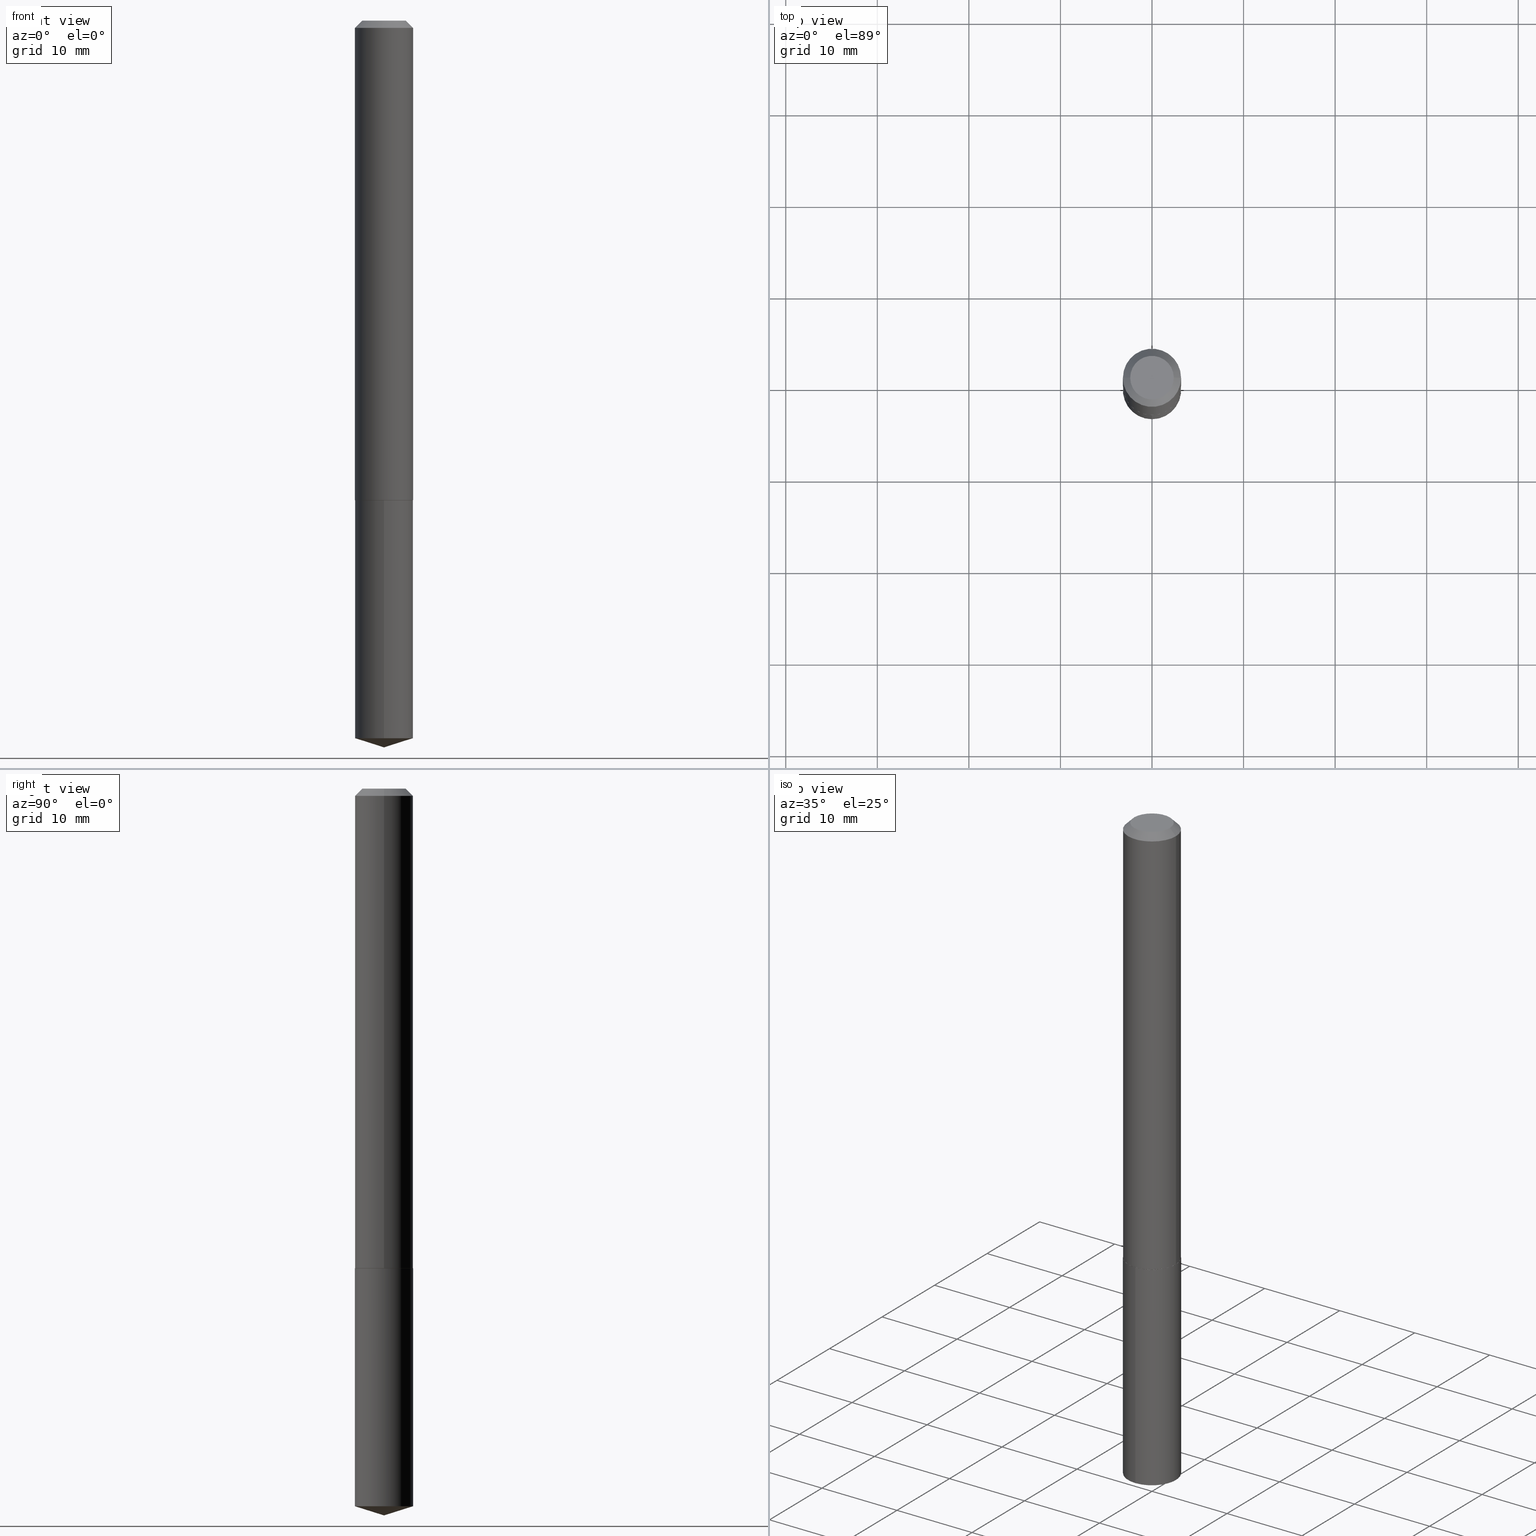
[diagram: canonical four-view strip — front | top / right | iso, engineering-drawing reading convention]
A machine part, canonical four-view strip (front | top / right | iso — engineering-drawing reading convention). The complete STEP part file that produces these views, byte-faithful:
ISO-10303-21;
HEADER;
FILE_DESCRIPTION (( 'STEP AP203' ),
    '1' );
FILE_NAME ('51343.STEP',
    '2024-04-22T18:43:46',
    ( '' ),
    ( '' ),
    'SwSTEP 2.0',
    'SolidWorks 2023',
    '' );
FILE_SCHEMA (( 'CONFIG_CONTROL_DESIGN' ));
ENDSEC;

DATA;
#1 = EDGE_CURVE ( 'NONE', #319, #227, #201, .T. ) ;
#2 = PLANE ( 'NONE',  #223 ) ;
#3 = VECTOR ( 'NONE', #103, 39.37007874015748143 ) ;
#4 = APPROVAL_PERSON_ORGANIZATION ( #281, #255, #321 ) ;
#5 = CARTESIAN_POINT ( 'NONE',  ( 5.043779412756844791E-29, -7.201180261363988578E-15, -2.062500000000000000 ) ) ;
#6 = CC_DESIGN_DATE_AND_TIME_ASSIGNMENT ( #9, #129, ( #85 ) ) ;
#7 = DIRECTION ( 'NONE',  ( -2.445468806185136597E-29, 3.491481338843145583E-15, 1.000000000000000000 ) ) ;
#8 = EDGE_CURVE ( 'NONE', #86, #29, #30, .T. ) ;
#9 = DATE_AND_TIME ( #374, #212 ) ;
#10 = CONICAL_SURFACE ( 'NONE', #253, 0.1250000000000002220, 0.7853981633976361287 ) ;
#11 = CC_DESIGN_PERSON_AND_ORGANIZATION_ASSIGNMENT ( #168, #43, ( #210 ) ) ;
#12 =( NAMED_UNIT ( * ) PLANE_ANGLE_UNIT ( ) SI_UNIT ( $, .RADIAN. ) );
#13 = EDGE_LOOP ( 'NONE', ( #232, #377, #147, #94 ) ) ;
#14 = APPROVAL_DATE_TIME ( #379, #255 ) ;
#15 = ADVANCED_FACE ( 'NONE', ( #259 ), #101, .F. ) ;
#16 = EDGE_LOOP ( 'NONE', ( #249, #242, #49 ) ) ;
#17 = FACE_OUTER_BOUND ( 'NONE', #215, .T. ) ;
#18 = DATE_AND_TIME ( #161, #167 ) ;
#19 = VECTOR ( 'NONE', #148, 39.37007874015748143 ) ;
#20 = DIRECTION ( 'NONE',  ( -2.445468806185136597E-29, 3.491481338843145583E-15, 1.000000000000000000 ) ) ;
#21 = DIRECTION ( 'NONE',  ( 1.000000000000000000, -6.982962677686266711E-15, 4.876176775795935232E-29 ) ) ;
#22 = DIMENSIONAL_EXPONENTS ( 1.000000000000000000, 0.000000000000000000, 0.000000000000000000, 0.000000000000000000, 0.000000000000000000, 0.000000000000000000, 0.000000000000000000 ) ;
#23 = ORIENTED_EDGE ( 'NONE', *, *, #389, .T. ) ;
#24 = DIRECTION ( 'NONE',  ( 6.776566513254247093E-15, 0.9537169507482274877, 0.3007057995042716203 ) ) ;
#25 = CIRCLE ( 'NONE', #246, 0.1250000000000000000 ) ;
#26 = CARTESIAN_POINT ( 'NONE',  ( 7.642090019328604414E-31, -1.091087918388490513E-16, -0.03125000000000021511 ) ) ;
#27 = CARTESIAN_POINT ( 'NONE',  ( -0.09374999999999998612, 7.092071469525108711E-16, -9.980871413055698252E-18 ) ) ;
#28 = ADVANCED_FACE ( 'NONE', ( #17 ), #10, .T. ) ;
#29 = VERTEX_POINT ( 'NONE', #266 ) ;
#30 = CIRCLE ( 'NONE', #290, 0.1250000000000000000 ) ;
#31 = CIRCLE ( 'NONE', #274, 0.1245000000000001383 ) ;
#32 = PRODUCT_DEFINITION_FORMATION_WITH_SPECIFIED_SOURCE ( 'ANY', '', #240, .NOT_KNOWN. ) ;
#33 = EDGE_LOOP ( 'NONE', ( #131, #205, #163 ) ) ;
#34 = LINE ( 'NONE', #154, #3 ) ;
#35 = ADVANCED_FACE ( 'NONE', ( #353 ), #338, .T. ) ;
#36 = EDGE_LOOP ( 'NONE', ( #75, #307, #109, #316 ) ) ;
#37 = DIRECTION ( 'NONE',  ( -2.445468806185136597E-29, 3.491481338843145583E-15, 1.000000000000000000 ) ) ;
#38 = LINE ( 'NONE', #218, #339 ) ;
#39 = MANIFOLD_SOLID_BREP ( 'Body-Move/Copy2[2]', #241 ) ;
#40 = EDGE_LOOP ( 'NONE', ( #77, #104, #187, #46 ) ) ;
#41 = LINE ( 'NONE', #367, #114 ) ;
#42 = FACE_OUTER_BOUND ( 'NONE', #80, .T. ) ;
#43 = PERSON_AND_ORGANIZATION_ROLE ( 'creator' ) ;
#44 = DIRECTION ( 'NONE',  ( -6.982962677686265922E-15, -1.000000000000000000, 4.370956789862821150E-15 ) ) ;
#45 = PERSON_AND_ORGANIZATION_ROLE ( 'design_supplier' ) ;
#46 = ORIENTED_EDGE ( 'NONE', *, *, #363, .F. ) ;
#47 = DIRECTION ( 'NONE',  ( -2.438088387897960049E-29, 3.491481338843145188E-15, 1.000000000000000000 ) ) ;
#48 = COORDINATED_UNIVERSAL_TIME_OFFSET ( 5, 0, .BEHIND. ) ;
#49 = ORIENTED_EDGE ( 'NONE', *, *, #146, .F. ) ;
#50 = FACE_OUTER_BOUND ( 'NONE', #352, .T. ) ;
#51 =( NAMED_UNIT ( * ) SI_UNIT ( $, .STERADIAN. ) SOLID_ANGLE_UNIT ( ) );
#52 = CC_DESIGN_APPROVAL ( #365, ( #85 ) ) ;
#53 = CARTESIAN_POINT ( 'NONE',  ( 5.043779412756844791E-29, -7.201180261363988578E-15, -2.062500000000000000 ) ) ;
#54 = ADVANCED_FACE ( 'NONE', ( #238 ), #58, .T. ) ;
#55 = DIRECTION ( 'NONE',  ( 1.000000000000000000, -6.982962677686265922E-15, 0.000000000000000000 ) ) ;
#56 = DIRECTION ( 'NONE',  ( -2.445468806185136597E-29, 3.491481338843145583E-15, 1.000000000000000000 ) ) ;
#57 = DIRECTION ( 'NONE',  ( -6.982962677686265922E-15, -1.000000000000000000, 4.370956789862821150E-15 ) ) ;
#58 = CYLINDRICAL_SURFACE ( 'NONE', #236, 0.1250000000000000000 ) ;
#59 = EDGE_CURVE ( 'NONE', #319, #299, #175, .T. ) ;
#60 = DESIGN_CONTEXT ( 'detailed design', #194, 'design' ) ;
#61 = AXIS2_PLACEMENT_3D ( 'NONE', #324, #56, #335 ) ;
#62 = CONICAL_SURFACE ( 'NONE', #263, 0.1250000000000000000, 0.7853981633974450594 ) ;
#63 = CC_DESIGN_APPROVAL ( #219, ( #32 ) ) ;
#64 = ORIENTED_EDGE ( 'NONE', *, *, #283, .F. ) ;
#65 = CARTESIAN_POINT ( 'NONE',  ( -0.1245000000000001383, -6.313905328168552254E-15, -2.062500000000000000 ) ) ;
#66 = CARTESIAN_POINT ( 'NONE',  ( -0.1250000000000000000, -2.766093236566581277E-15, -0.03125000000000021511 ) ) ;
#67 = CARTESIAN_POINT ( 'NONE',  ( 0.1250000000000000000, -9.819791265496324395E-16, -0.03125000000000021511 ) ) ;
#68 = CIRCLE ( 'NONE', #139, 0.09374999999999998612 ) ;
#69 = VERTEX_POINT ( 'NONE', #115 ) ;
#70 = ADVANCED_FACE ( 'NONE', ( #378 ), #62, .T. ) ;
#71 = CLOSED_SHELL ( 'NONE', ( #83, #35, #162, #54, #271 ) ) ;
#72 = FACE_OUTER_BOUND ( 'NONE', #261, .T. ) ;
#73 = LINE ( 'NONE', #92, #151 ) ;
#74 = AXIS2_PLACEMENT_3D ( 'NONE', #53, #87, #172 ) ;
#75 = ORIENTED_EDGE ( 'NONE', *, *, #146, .T. ) ;
#76 = PERSON_AND_ORGANIZATION_ROLE ( 'classification_officer' ) ;
#77 = ORIENTED_EDGE ( 'NONE', *, *, #283, .T. ) ;
#78 = CARTESIAN_POINT ( 'NONE',  ( 7.548781518313018296E-29, -1.076887075257701852E-14, -3.085587651390127029 ) ) ;
#79 = CARTESIAN_POINT ( 'NONE',  ( 0.000000000000000000, 0.000000000000000000, 0.000000000000000000 ) ) ;
#80 = EDGE_LOOP ( 'NONE', ( #160, #158, #120, #366 ) ) ;
#81 = CARTESIAN_POINT ( 'NONE',  ( 2.440790969916101273E-46, -3.484802628406033486E-32, -9.980871413050928108E-18 ) ) ;
#82 = PERSON_AND_ORGANIZATION_ROLE ( 'creator' ) ;
#83 = ADVANCED_FACE ( 'NONE', ( #294 ), #265, .T. ) ;
#84 = AXIS2_PLACEMENT_3D ( 'NONE', #270, #250, #188 ) ;
#85 = SECURITY_CLASSIFICATION ( '', '', #287 ) ;
#86 = VERTEX_POINT ( 'NONE', #269 ) ;
#87 = DIRECTION ( 'NONE',  ( -2.448472623193610432E-29, 3.487179701920364384E-15, 1.000000000000000000 ) ) ;
#88 = DIRECTION ( 'NONE',  ( -2.445468806185136597E-29, 3.491481338843145583E-15, 1.000000000000000000 ) ) ;
#89 = DIRECTION ( 'NONE',  ( -6.982962677686265922E-15, -1.000000000000000000, 3.500519750498761230E-15 ) ) ;
#90 = VECTOR ( 'NONE', #24, 39.37007874015748854 ) ;
#91 = PRODUCT_RELATED_PRODUCT_CATEGORY ( 'detail', '', ( #240 ) ) ;
#92 = CARTESIAN_POINT ( 'NONE',  ( 0.1250000000000001110, -8.728703347107841277E-16, 6.095220969744924646E-30 ) ) ;
#93 = CIRCLE ( 'NONE', #84, 0.1250000000000000000 ) ;
#94 = ORIENTED_EDGE ( 'NONE', *, *, #370, .F. ) ;
#95 = DIRECTION ( 'NONE',  ( -6.982962677686265922E-15, -1.000000000000000000, 4.370956789862821150E-15 ) ) ;
#96 = DIRECTION ( 'NONE',  ( 1.000000000000000000, -6.982962677686266711E-15, 4.876176775795935232E-29 ) ) ;
#97 = CARTESIAN_POINT ( 'NONE',  ( 5.042556678353752550E-29, -7.199434520694567863E-15, -2.062000000000000277 ) ) ;
#98 = ADVANCED_FACE ( 'NONE', ( #323 ), #310, .T. ) ;
#99 = VERTEX_POINT ( 'NONE', #239 ) ;
#100 = CARTESIAN_POINT ( 'NONE',  ( -0.1250000000000002220, -6.311256100994441053E-15, -2.062000000000000277 ) ) ;
#101 = PLANE ( 'NONE',  #180 ) ;
#102 = CIRCLE ( 'NONE', #74, 0.1250000000000000000 ) ;
#103 = DIRECTION ( 'NONE',  ( -2.448472623193610432E-29, 3.487179701920364384E-15, 1.000000000000000000 ) ) ;
#104 = ORIENTED_EDGE ( 'NONE', *, *, #59, .T. ) ;
#105 = APPROVAL_STATUS ( 'not_yet_approved' ) ;
#106 = ORIENTED_EDGE ( 'NONE', *, *, #111, .T. ) ;
#107 = DIRECTION ( 'NONE',  ( -6.982962677686265922E-15, -1.000000000000000000, 4.370956789862821150E-15 ) ) ;
#108 = APPROVAL_DATE_TIME ( #18, #365 ) ;
#109 = ORIENTED_EDGE ( 'NONE', *, *, #173, .F. ) ;
#110 = CARTESIAN_POINT ( 'NONE',  ( -8.875127839335232056E-28, 1.263842307510292778E-13, 36.24507874015748143 ) ) ;
#111 = EDGE_CURVE ( 'NONE', #192, #144, #68, .T. ) ;
#112 = COORDINATED_UNIVERSAL_TIME_OFFSET ( 5, 0, .BEHIND. ) ;
#113 = CARTESIAN_POINT ( 'NONE',  ( 5.043779412756844791E-29, -7.201180261363988578E-15, -2.062500000000000000 ) ) ;
#114 = VECTOR ( 'NONE', #184, 39.37007874015748143 ) ;
#115 = CARTESIAN_POINT ( 'NONE',  ( 0.1250000000000002220, -8.072304855405352780E-15, -2.062000000000000277 ) ) ;
#116 = DIRECTION ( 'NONE',  ( -2.448472623193610432E-29, 3.487179701920364384E-15, 1.000000000000000000 ) ) ;
#117 = CONICAL_SURFACE ( 'NONE', #134, 0.1250000000000000000, 0.7853981633974450594 ) ;
#118 = EDGE_CURVE ( 'NONE', #69, #299, #268, .T. ) ;
#119 = CARTESIAN_POINT ( 'NONE',  ( 2.440790969916101273E-46, -3.484802628406033486E-32, -9.980871413050928108E-18 ) ) ;
#120 = ORIENTED_EDGE ( 'NONE', *, *, #326, .T. ) ;
#121 = CYLINDRICAL_SURFACE ( 'NONE', #358, 0.1250000000000001110 ) ;
#122 = AXIS2_PLACEMENT_3D ( 'NONE', #135, #116, #89 ) ;
#123 = DIRECTION ( 'NONE',  ( -6.659769872151621833E-15, -0.9537169507482252673, 0.3007057995042782816 ) ) ;
#124 = ORIENTED_EDGE ( 'NONE', *, *, #173, .T. ) ;
#125 = CARTESIAN_POINT ( 'NONE',  ( 7.642090019328604414E-31, -1.091087918388490513E-16, -0.03125000000000021511 ) ) ;
#126 = DIRECTION ( 'NONE',  ( -2.445468806185136597E-29, 3.491481338843145583E-15, 1.000000000000000000 ) ) ;
#127 = AXIS2_PLACEMENT_3D ( 'NONE', #5, #272, #95 ) ;
#128 = LOCAL_TIME ( 14, 43, 46.00000000000000000, #155 ) ;
#129 = DATE_TIME_ROLE ( 'classification_date' ) ;
#130 = APPROVAL_STATUS ( 'not_yet_approved' ) ;
#131 = ORIENTED_EDGE ( 'NONE', *, *, #207, .F. ) ;
#132 = PERSON_AND_ORGANIZATION ( #177, #376 ) ;
#133 = ORIENTED_EDGE ( 'NONE', *, *, #356, .F. ) ;
#134 = AXIS2_PLACEMENT_3D ( 'NONE', #125, #247, #331 ) ;
#135 = CARTESIAN_POINT ( 'NONE',  ( -8.875127839335232056E-28, 1.263842307510292778E-13, 36.24507874015748143 ) ) ;
#136 = APPROVAL_DATE_TIME ( #313, #219 ) ;
#137 = LINE ( 'NONE', #383, #90 ) ;
#138 = DIRECTION ( 'NONE',  ( -2.448472623193610432E-29, 3.487179701920364384E-15, 1.000000000000000000 ) ) ;
#139 = AXIS2_PLACEMENT_3D ( 'NONE', #81, #20, #387 ) ;
#140 = CIRCLE ( 'NONE', #385, 0.1250000000000000000 ) ;
#141 = APPROVAL_PERSON_ORGANIZATION ( #159, #219, #372 ) ;
#142 = DIRECTION ( 'NONE',  ( -2.448472623193610432E-29, 3.487179701920364384E-15, 1.000000000000000000 ) ) ;
#143 = DIRECTION ( 'NONE',  ( -2.448472623193610432E-29, 3.487179701920364384E-15, 1.000000000000000000 ) ) ;
#144 = VERTEX_POINT ( 'NONE', #27 ) ;
#145 =( GEOMETRIC_REPRESENTATION_CONTEXT ( 3 ) GLOBAL_UNCERTAINTY_ASSIGNED_CONTEXT ( ( #388 ) ) GLOBAL_UNIT_ASSIGNED_CONTEXT ( ( #157, #12, #51 ) ) REPRESENTATION_CONTEXT ( 'NONE', 'WORKASPACE' ) );
#146 = EDGE_CURVE ( 'NONE', #29, #86, #25, .T. ) ;
#147 = ORIENTED_EDGE ( 'NONE', *, *, #213, .T. ) ;
#148 = DIRECTION ( 'NONE',  ( 0.7071067811866803554, -2.468850131083648217E-15, 0.7071067811864146790 ) ) ;
#149 = EDGE_CURVE ( 'NONE', #192, #380, #197, .T. ) ;
#150 = CARTESIAN_POINT ( 'NONE',  ( 7.651476947480032109E-29, -1.089743656850113949E-14, -3.125000000000000000 ) ) ;
#151 = VECTOR ( 'NONE', #364, 39.37007874015748143 ) ;
#152 = CARTESIAN_POINT ( 'NONE',  ( 5.043779412756844791E-29, -7.201180261363988578E-15, -2.062500000000000000 ) ) ;
#153 = CC_DESIGN_PERSON_AND_ORGANIZATION_ASSIGNMENT ( #204, #45, ( #32 ) ) ;
#154 = CARTESIAN_POINT ( 'NONE',  ( -8.728703347107327531E-16, -0.1250000000000072164, -2.062499999999999556 ) ) ;
#155 = COORDINATED_UNIVERSAL_TIME_OFFSET ( 5, 0, .BEHIND. ) ;
#156 = VECTOR ( 'NONE', #351, 39.37007874015748143 ) ;
#157 =( CONVERSION_BASED_UNIT ( 'INCH', #349 ) LENGTH_UNIT ( ) NAMED_UNIT ( #22 ) );
#158 = ORIENTED_EDGE ( 'NONE', *, *, #149, .T. ) ;
#159 = PERSON_AND_ORGANIZATION ( #177, #376 ) ;
#160 = ORIENTED_EDGE ( 'NONE', *, *, #111, .F. ) ;
#161 = CALENDAR_DATE ( 2024, 22, 4 ) ;
#162 = ADVANCED_FACE ( 'NONE', ( #200 ), #297, .T. ) ;
#163 = ORIENTED_EDGE ( 'NONE', *, *, #8, .F. ) ;
#164 = CYLINDRICAL_SURFACE ( 'NONE', #279, 0.1250000000000001110 ) ;
#165 = MANIFOLD_SOLID_BREP ( 'Body-Move/Copy2[1]', #71 ) ;
#166 = VECTOR ( 'NONE', #308, 39.37007874015748143 ) ;
#167 = LOCAL_TIME ( 14, 43, 46.00000000000000000, #48 ) ;
#168 = PERSON_AND_ORGANIZATION ( #177, #376 ) ;
#169 = DIRECTION ( 'NONE',  ( -2.445468806185136597E-29, 3.491481338843145583E-15, 1.000000000000000000 ) ) ;
#170 = ORIENTED_EDGE ( 'NONE', *, *, #363, .T. ) ;
#171 = DIRECTION ( 'NONE',  ( 1.000000000000000000, -6.982962677686266711E-15, 0.000000000000000000 ) ) ;
#172 = DIRECTION ( 'NONE',  ( -6.982962677686265922E-15, -1.000000000000000000, 4.370956789862821150E-15 ) ) ;
#173 = EDGE_CURVE ( 'NONE', #99, #285, #102, .T. ) ;
#174 = AXIS2_PLACEMENT_3D ( 'NONE', #298, #88, #325 ) ;
#175 = LINE ( 'NONE', #384, #361 ) ;
#176 = APPLICATION_CONTEXT ( 'configuration controlled 3d designs of mechanical parts and assemblies' ) ;
#177 = PERSON ( 'UNSPECIFIED', 'UNSPECIFIED', 'UNSPECIFIED', ('UNSPECIFIED'), ('UNSPECIFIED'), ('UNSPECIFIED') ) ;
#178 = EDGE_CURVE ( 'NONE', #86, #285, #209, .T. ) ;
#179 = CC_DESIGN_SECURITY_CLASSIFICATION ( #85, ( #32 ) ) ;
#180 = AXIS2_PLACEMENT_3D ( 'NONE', #315, #47, #286 ) ;
#181 = FACE_OUTER_BOUND ( 'NONE', #314, .T. ) ;
#182 = EDGE_CURVE ( 'NONE', #217, #380, #140, .T. ) ;
#183 = ORIENTED_EDGE ( 'NONE', *, *, #292, .F. ) ;
#184 = DIRECTION ( 'NONE',  ( -2.445468806185136877E-29, 3.491481338843145188E-15, 1.000000000000000000 ) ) ;
#185 =( LENGTH_UNIT ( ) NAMED_UNIT ( * ) SI_UNIT ( $, .METRE. ) );
#186 = CIRCLE ( 'NONE', #311, 0.09374999999999998612 ) ;
#187 = ORIENTED_EDGE ( 'NONE', *, *, #118, .F. ) ;
#188 = DIRECTION ( 'NONE',  ( 1.000000000000000000, -6.982962677686266711E-15, 0.000000000000000000 ) ) ;
#189 = CC_DESIGN_PERSON_AND_ORGANIZATION_ASSIGNMENT ( #342, #226, ( #240 ) ) ;
#190 = DATE_TIME_ROLE ( 'creation_date' ) ;
#191 = CALENDAR_DATE ( 2024, 22, 4 ) ;
#192 = VERTEX_POINT ( 'NONE', #317 ) ;
#193 = ADVANCED_FACE ( 'NONE', ( #50 ), #164, .T. ) ;
#194 = APPLICATION_CONTEXT ( 'configuration controlled 3d designs of mechanical parts and assemblies' ) ;
#195 = ADVANCED_BREP_SHAPE_REPRESENTATION ( '51343', ( #165, #39, #368 ), #145 ) ;
#196 = ORIENTED_EDGE ( 'NONE', *, *, #149, .F. ) ;
#197 = LINE ( 'NONE', #320, #156 ) ;
#198 = CC_DESIGN_PERSON_AND_ORGANIZATION_ASSIGNMENT ( #284, #82, ( #32 ) ) ;
#199 = DIRECTION ( 'NONE',  ( 0.000000000000000000, 0.000000000000000000, 1.000000000000000000 ) ) ;
#200 = FACE_OUTER_BOUND ( 'NONE', #33, .T. ) ;
#201 = CIRCLE ( 'NONE', #61, 0.1245000000000001383 ) ;
#202 = AXIS2_PLACEMENT_3D ( 'NONE', #113, #288, #208 ) ;
#203 = APPROVAL_PERSON_ORGANIZATION ( #256, #365, #346 ) ;
#204 = PERSON_AND_ORGANIZATION ( #177, #376 ) ;
#205 = ORIENTED_EDGE ( 'NONE', *, *, #386, .T. ) ;
#206 = CARTESIAN_POINT ( 'NONE',  ( 7.642090019328604414E-31, -1.091087918388490513E-16, -0.03125000000000021511 ) ) ;
#207 = EDGE_CURVE ( 'NONE', #229, #86, #137, .T. ) ;
#208 = DIRECTION ( 'NONE',  ( -6.982962677686265922E-15, -1.000000000000000000, 4.370956789862821150E-15 ) ) ;
#209 = LINE ( 'NONE', #293, #328 ) ;
#210 = PRODUCT_DEFINITION ( 'UNKNOWN', '', #32, #60 ) ;
#211 = AXIS2_PLACEMENT_3D ( 'NONE', #357, #233, #55 ) ;
#212 = LOCAL_TIME ( 14, 43, 46.00000000000000000, #278 ) ;
#213 = EDGE_CURVE ( 'NONE', #29, #99, #34, .T. ) ;
#214 = ORIENTED_EDGE ( 'NONE', *, *, #334, .F. ) ;
#215 = EDGE_LOOP ( 'NONE', ( #347, #221, #170, #214 ) ) ;
#216 = DIRECTION ( 'NONE',  ( 2.438088387897960049E-29, -3.491481338843145188E-15, -1.000000000000000000 ) ) ;
#217 = VERTEX_POINT ( 'NONE', #66 ) ;
#218 = CARTESIAN_POINT ( 'NONE',  ( 7.639086202320077469E-29, -1.091518082080761119E-14, -3.125000000000000000 ) ) ;
#219 = APPROVAL ( #382, 'UNSPECIFIED' ) ;
#220 = CARTESIAN_POINT ( 'NONE',  ( -0.1250000000000000000, 7.637615428719342382E-16, -0.03125000000000021511 ) ) ;
#221 = ORIENTED_EDGE ( 'NONE', *, *, #1, .T. ) ;
#222 = LINE ( 'NONE', #275, #19 ) ;
#223 = AXIS2_PLACEMENT_3D ( 'NONE', #152, #340, #225 ) ;
#224 = DIRECTION ( 'NONE',  ( 1.000000000000000000, -6.982962677686265922E-15, 0.000000000000000000 ) ) ;
#225 = DIRECTION ( 'NONE',  ( 6.982962677686265922E-15, 1.000000000000000000, -3.487179701920364384E-15 ) ) ;
#226 = PERSON_AND_ORGANIZATION_ROLE ( 'design_owner' ) ;
#227 = VERTEX_POINT ( 'NONE', #360 ) ;
#228 = DATE_AND_TIME ( #291, #128 ) ;
#229 = VERTEX_POINT ( 'NONE', #150 ) ;
#230 = DIRECTION ( 'NONE',  ( -1.000000000000000000, 6.982962677686266711E-15, 0.000000000000000000 ) ) ;
#231 = SHAPE_DEFINITION_REPRESENTATION ( #243, #195 ) ;
#232 = ORIENTED_EDGE ( 'NONE', *, *, #178, .F. ) ;
#233 = DIRECTION ( 'NONE',  ( -2.445468806185136597E-29, 3.491481338843145583E-15, 1.000000000000000000 ) ) ;
#234 = ORIENTED_EDGE ( 'NONE', *, *, #182, .F. ) ;
#235 = DIRECTION ( 'NONE',  ( -6.982962677686265922E-15, -1.000000000000000000, 3.500519750498761230E-15 ) ) ;
#236 = AXIS2_PLACEMENT_3D ( 'NONE', #355, #138, #107 ) ;
#237 = ORIENTED_EDGE ( 'NONE', *, *, #118, .T. ) ;
#238 = FACE_OUTER_BOUND ( 'NONE', #13, .T. ) ;
#239 = CARTESIAN_POINT ( 'NONE',  ( -8.728703347107327531E-16, -0.1250000000000072164, -2.062499999999999556 ) ) ;
#240 = PRODUCT ( '51343', '51343', '', ( #264 ) ) ;
#241 = CLOSED_SHELL ( 'NONE', ( #312, #193, #98, #15, #28, #343, #70, #301 ) ) ;
#242 = ORIENTED_EDGE ( 'NONE', *, *, #207, .T. ) ;
#243 = PRODUCT_DEFINITION_SHAPE ( 'NONE', 'NONE',  #210 ) ;
#244 = DIRECTION ( 'NONE',  ( 1.000000000000000000, -6.982962677686266711E-15, 4.877000552086103125E-29 ) ) ;
#245 = ORIENTED_EDGE ( 'NONE', *, *, #292, .T. ) ;
#246 = AXIS2_PLACEMENT_3D ( 'NONE', #78, #143, #57 ) ;
#247 = DIRECTION ( 'NONE',  ( 2.445468806185136597E-29, -3.491481338843145583E-15, -1.000000000000000000 ) ) ;
#248 = LINE ( 'NONE', #220, #166 ) ;
#249 = ORIENTED_EDGE ( 'NONE', *, *, #386, .F. ) ;
#250 = DIRECTION ( 'NONE',  ( -2.445468806185136597E-29, 3.491481338843145583E-15, 1.000000000000000000 ) ) ;
#251 = EDGE_CURVE ( 'NONE', #299, #217, #41, .T. ) ;
#252 = DIRECTION ( 'NONE',  ( 1.000000000000000000, -6.982962677686265922E-15, 0.000000000000000000 ) ) ;
#253 = AXIS2_PLACEMENT_3D ( 'NONE', #97, #262, #224 ) ;
#254 = CIRCLE ( 'NONE', #306, 0.1250000000000002220 ) ;
#255 = APPROVAL ( #130, 'UNSPECIFIED' ) ;
#256 = PERSON_AND_ORGANIZATION ( #177, #376 ) ;
#257 = COORDINATED_UNIVERSAL_TIME_OFFSET ( 5, 0, .BEHIND. ) ;
#258 = EDGE_LOOP ( 'NONE', ( #196, #133, #23, #329 ) ) ;
#259 = FACE_OUTER_BOUND ( 'NONE', #302, .T. ) ;
#260 = DIRECTION ( 'NONE',  ( 1.000000000000000000, 0.000000000000000000, 0.000000000000000000 ) ) ;
#261 = EDGE_LOOP ( 'NONE', ( #124, #273 ) ) ;
#262 = DIRECTION ( 'NONE',  ( -2.445468806185136597E-29, 3.491481338843145583E-15, 1.000000000000000000 ) ) ;
#263 = AXIS2_PLACEMENT_3D ( 'NONE', #206, #348, #230 ) ;
#264 = MECHANICAL_CONTEXT ( 'NONE', #176, 'mechanical' ) ;
#265 = CYLINDRICAL_SURFACE ( 'NONE', #202, 0.1250000000000000000 ) ;
#266 = CARTESIAN_POINT ( 'NONE',  ( -8.728703347107075096E-16, -0.1250000000000107414, -3.085587651390126585 ) ) ;
#267 = DIRECTION ( 'NONE',  ( -0.7071067811866803554, 7.493145998870833788E-15, 0.7071067811864146790 ) ) ;
#268 = CIRCLE ( 'NONE', #211, 0.1250000000000002220 ) ;
#269 = CARTESIAN_POINT ( 'NONE',  ( 8.881784197002003713E-16, 0.1249999999999891753, -3.085587651390127473 ) ) ;
#270 = CARTESIAN_POINT ( 'NONE',  ( 7.642090019328604414E-31, -1.091087918388490513E-16, -0.03125000000000021511 ) ) ;
#271 = ADVANCED_FACE ( 'NONE', ( #72 ), #2, .F. ) ;
#272 = DIRECTION ( 'NONE',  ( -2.448472623193610432E-29, 3.487179701920364384E-15, 1.000000000000000000 ) ) ;
#273 = ORIENTED_EDGE ( 'NONE', *, *, #370, .T. ) ;
#274 = AXIS2_PLACEMENT_3D ( 'NONE', #369, #7, #252 ) ;
#275 = CARTESIAN_POINT ( 'NONE',  ( 0.1250000000000002220, -8.072304855405352780E-15, -2.062000000000000277 ) ) ;
#276 = CARTESIAN_POINT ( 'NONE',  ( 1.220395484958050637E-46, -1.742401314203016743E-32, -4.990435706525464054E-18 ) ) ;
#277 = PLANE ( 'NONE',  #375 ) ;
#278 = COORDINATED_UNIVERSAL_TIME_OFFSET ( 5, 0, .BEHIND. ) ;
#279 = AXIS2_PLACEMENT_3D ( 'NONE', #381, #169, #21 ) ;
#280 = CC_DESIGN_APPROVAL ( #255, ( #210 ) ) ;
#281 = PERSON_AND_ORGANIZATION ( #177, #376 ) ;
#282 = ORIENTED_EDGE ( 'NONE', *, *, #251, .F. ) ;
#283 = EDGE_CURVE ( 'NONE', #227, #319, #31, .T. ) ;
#284 = PERSON_AND_ORGANIZATION ( #177, #376 ) ;
#285 = VERTEX_POINT ( 'NONE', #341 ) ;
#286 = DIRECTION ( 'NONE',  ( 1.000000000000000000, -6.982962677686265922E-15, 4.876176775795935793E-29 ) ) ;
#287 = SECURITY_CLASSIFICATION_LEVEL ( 'unclassified' ) ;
#288 = DIRECTION ( 'NONE',  ( -2.448472623193610432E-29, 3.487179701920364384E-15, 1.000000000000000000 ) ) ;
#289 = CIRCLE ( 'NONE', #127, 0.1250000000000000000 ) ;
#290 = AXIS2_PLACEMENT_3D ( 'NONE', #359, #336, #44 ) ;
#291 = CALENDAR_DATE ( 2024, 22, 4 ) ;
#292 = EDGE_CURVE ( 'NONE', #69, #380, #73, .T. ) ;
#293 = CARTESIAN_POINT ( 'NONE',  ( 8.881784197001755222E-16, 0.1249999999999927974, -2.062500000000000888 ) ) ;
#294 = FACE_OUTER_BOUND ( 'NONE', #36, .T. ) ;
#295 = CC_DESIGN_PERSON_AND_ORGANIZATION_ASSIGNMENT ( #132, #76, ( #85 ) ) ;
#296 = DIRECTION ( 'NONE',  ( -2.448472623193610432E-29, 3.487179701920364384E-15, 1.000000000000000000 ) ) ;
#297 = CONICAL_SURFACE ( 'NONE', #122, 124.8659371009130439, 1.265363707695887019 ) ;
#298 = CARTESIAN_POINT ( 'NONE',  ( 5.042556678353752550E-29, -7.199434520694567863E-15, -2.062000000000000277 ) ) ;
#299 = VERTEX_POINT ( 'NONE', #100 ) ;
#300 = LOCAL_TIME ( 14, 43, 46.00000000000000000, #257 ) ;
#301 = ADVANCED_FACE ( 'NONE', ( #333 ), #277, .F. ) ;
#302 = EDGE_LOOP ( 'NONE', ( #64, #350 ) ) ;
#303 = CARTESIAN_POINT ( 'NONE',  ( 0.000000000000000000, 0.000000000000000000, 0.000000000000000000 ) ) ;
#304 = ORIENTED_EDGE ( 'NONE', *, *, #334, .T. ) ;
#305 = DIRECTION ( 'NONE',  ( -2.445468806185136597E-29, 3.491481338843145583E-15, 1.000000000000000000 ) ) ;
#306 = AXIS2_PLACEMENT_3D ( 'NONE', #309, #126, #390 ) ;
#307 = ORIENTED_EDGE ( 'NONE', *, *, #178, .T. ) ;
#308 = DIRECTION ( 'NONE',  ( -0.7071067811865452413, 2.468850131082233000E-15, -0.7071067811865497932 ) ) ;
#309 = CARTESIAN_POINT ( 'NONE',  ( 5.042556678353752550E-29, -7.199434520694567863E-15, -2.062000000000000277 ) ) ;
#310 = CONICAL_SURFACE ( 'NONE', #174, 0.1250000000000002220, 0.7853981633976361287 ) ;
#311 = AXIS2_PLACEMENT_3D ( 'NONE', #119, #305, #244 ) ;
#312 = ADVANCED_FACE ( 'NONE', ( #42 ), #117, .T. ) ;
#313 = DATE_AND_TIME ( #191, #354 ) ;
#314 = EDGE_LOOP ( 'NONE', ( #282, #304, #245, #234 ) ) ;
#315 = CARTESIAN_POINT ( 'NONE',  ( 5.043779412756844791E-29, -7.201180261363988578E-15, -2.062500000000000000 ) ) ;
#316 = ORIENTED_EDGE ( 'NONE', *, *, #213, .F. ) ;
#317 = CARTESIAN_POINT ( 'NONE',  ( 0.09374999999999998612, -8.049213644256857164E-16, -9.980871413045825164E-18 ) ) ;
#318 = CALENDAR_DATE ( 2024, 22, 4 ) ;
#319 = VERTEX_POINT ( 'NONE', #65 ) ;
#320 = CARTESIAN_POINT ( 'NONE',  ( 0.1250000000000000000, -9.666710415602905459E-16, -0.03125000000000021511 ) ) ;
#321 = APPROVAL_ROLE ( '' ) ;
#322 = ORIENTED_EDGE ( 'NONE', *, *, #356, .T. ) ;
#323 = FACE_OUTER_BOUND ( 'NONE', #40, .T. ) ;
#324 = CARTESIAN_POINT ( 'NONE',  ( 5.043779412756844791E-29, -7.201180261363988578E-15, -2.062500000000000000 ) ) ;
#325 = DIRECTION ( 'NONE',  ( 1.000000000000000000, -6.982962677686265922E-15, 0.000000000000000000 ) ) ;
#326 = EDGE_CURVE ( 'NONE', #380, #217, #93, .T. ) ;
#327 = DIRECTION ( 'NONE',  ( -2.445468806185136597E-29, 3.491481338843145583E-15, 1.000000000000000000 ) ) ;
#328 = VECTOR ( 'NONE', #296, 39.37007874015748143 ) ;
#329 = ORIENTED_EDGE ( 'NONE', *, *, #182, .T. ) ;
#330 = ORIENTED_EDGE ( 'NONE', *, *, #251, .T. ) ;
#331 = DIRECTION ( 'NONE',  ( -1.000000000000000000, 6.982962677686266711E-15, 0.000000000000000000 ) ) ;
#332 = CC_DESIGN_DATE_AND_TIME_ASSIGNMENT ( #228, #190, ( #210 ) ) ;
#333 = FACE_OUTER_BOUND ( 'NONE', #373, .T. ) ;
#334 = EDGE_CURVE ( 'NONE', #299, #69, #254, .T. ) ;
#335 = DIRECTION ( 'NONE',  ( 1.000000000000000000, -6.982962677686265922E-15, 0.000000000000000000 ) ) ;
#336 = DIRECTION ( 'NONE',  ( -2.448472623193610432E-29, 3.487179701920364384E-15, 1.000000000000000000 ) ) ;
#337 = ORIENTED_EDGE ( 'NONE', *, *, #326, .F. ) ;
#338 = CONICAL_SURFACE ( 'NONE', #345, 124.8659371009130439, 1.265363707695887019 ) ;
#339 = VECTOR ( 'NONE', #123, 39.37007874015748143 ) ;
#340 = DIRECTION ( 'NONE',  ( 2.448472623193610152E-29, -3.487179701920364384E-15, -1.000000000000000000 ) ) ;
#341 = CARTESIAN_POINT ( 'NONE',  ( 8.881784197002007658E-16, 0.1249999999999927974, -2.062500000000000888 ) ) ;
#342 = PERSON_AND_ORGANIZATION ( #177, #376 ) ;
#343 = ADVANCED_FACE ( 'NONE', ( #181 ), #121, .T. ) ;
#344 = APPLICATION_PROTOCOL_DEFINITION ( 'international standard', 'config_control_design', 1994, #194 ) ;
#345 = AXIS2_PLACEMENT_3D ( 'NONE', #110, #142, #235 ) ;
#346 = APPROVAL_ROLE ( '' ) ;
#347 = ORIENTED_EDGE ( 'NONE', *, *, #59, .F. ) ;
#348 = DIRECTION ( 'NONE',  ( 2.445468806185136597E-29, -3.491481338843145583E-15, -1.000000000000000000 ) ) ;
#349 = LENGTH_MEASURE_WITH_UNIT ( LENGTH_MEASURE( 0.02539999999999999897 ), #185 );
#350 = ORIENTED_EDGE ( 'NONE', *, *, #1, .F. ) ;
#351 = DIRECTION ( 'NONE',  ( 0.7071067811865452413, -7.319954787623248157E-15, -0.7071067811865497932 ) ) ;
#352 = EDGE_LOOP ( 'NONE', ( #237, #330, #337, #183 ) ) ;
#353 = FACE_OUTER_BOUND ( 'NONE', #16, .T. ) ;
#354 = LOCAL_TIME ( 14, 43, 46.00000000000000000, #112 ) ;
#355 = CARTESIAN_POINT ( 'NONE',  ( 5.043779412756844791E-29, -7.201180261363988578E-15, -2.062500000000000000 ) ) ;
#356 = EDGE_CURVE ( 'NONE', #144, #192, #186, .T. ) ;
#357 = CARTESIAN_POINT ( 'NONE',  ( 5.042556678353752550E-29, -7.199434520694567863E-15, -2.062000000000000277 ) ) ;
#358 = AXIS2_PLACEMENT_3D ( 'NONE', #303, #37, #96 ) ;
#359 = CARTESIAN_POINT ( 'NONE',  ( 7.548781518313018296E-29, -1.076887075257701852E-14, -3.085587651390127029 ) ) ;
#360 = CARTESIAN_POINT ( 'NONE',  ( 0.1245000000000001383, -8.070559114735930487E-15, -2.062500000000000000 ) ) ;
#361 = VECTOR ( 'NONE', #267, 39.37007874015748143 ) ;
#362 = DIRECTION ( 'NONE',  ( -1.000000000000000000, 6.982962677686265922E-15, -4.876176775795935793E-29 ) ) ;
#363 = EDGE_CURVE ( 'NONE', #227, #69, #222, .T. ) ;
#364 = DIRECTION ( 'NONE',  ( -2.445468806185136877E-29, 3.491481338843145188E-15, 1.000000000000000000 ) ) ;
#365 = APPROVAL ( #105, 'UNSPECIFIED' ) ;
#366 = ORIENTED_EDGE ( 'NONE', *, *, #389, .F. ) ;
#367 = CARTESIAN_POINT ( 'NONE',  ( -0.1250000000000001110, 8.881784197001260212E-16, -6.148668862818637832E-30 ) ) ;
#368 = AXIS2_PLACEMENT_3D ( 'NONE', #79, #199, #260 ) ;
#369 = CARTESIAN_POINT ( 'NONE',  ( 5.043779412756844791E-29, -7.201180261363988578E-15, -2.062500000000000000 ) ) ;
#370 = EDGE_CURVE ( 'NONE', #285, #99, #289, .T. ) ;
#371 = APPLICATION_PROTOCOL_DEFINITION ( 'international standard', 'config_control_design', 1994, #176 ) ;
#372 = APPROVAL_ROLE ( '' ) ;
#373 = EDGE_LOOP ( 'NONE', ( #322, #106 ) ) ;
#374 = CALENDAR_DATE ( 2024, 22, 4 ) ;
#375 = AXIS2_PLACEMENT_3D ( 'NONE', #276, #216, #362 ) ;
#376 = ORGANIZATION ( 'UNSPECIFIED', 'UNSPECIFIED', '' ) ;
#377 = ORIENTED_EDGE ( 'NONE', *, *, #8, .T. ) ;
#378 = FACE_OUTER_BOUND ( 'NONE', #258, .T. ) ;
#379 = DATE_AND_TIME ( #318, #300 ) ;
#380 = VERTEX_POINT ( 'NONE', #67 ) ;
#381 = CARTESIAN_POINT ( 'NONE',  ( 0.000000000000000000, 0.000000000000000000, 0.000000000000000000 ) ) ;
#382 = APPROVAL_STATUS ( 'not_yet_approved' ) ;
#383 = CARTESIAN_POINT ( 'NONE',  ( 7.651585599688983165E-29, -1.089743656850113949E-14, -3.125000000000000000 ) ) ;
#384 = CARTESIAN_POINT ( 'NONE',  ( -0.1250000000000002220, -6.311256100994441053E-15, -2.062000000000000277 ) ) ;
#385 = AXIS2_PLACEMENT_3D ( 'NONE', #26, #327, #171 ) ;
#386 = EDGE_CURVE ( 'NONE', #229, #29, #38, .T. ) ;
#387 = DIRECTION ( 'NONE',  ( 1.000000000000000000, -6.982962677686266711E-15, 4.877000552086103125E-29 ) ) ;
#388 = UNCERTAINTY_MEASURE_WITH_UNIT (LENGTH_MEASURE( 1.000000000000000082E-05 ), #157, 'distance_accuracy_value', 'NONE');
#389 = EDGE_CURVE ( 'NONE', #144, #217, #248, .T. ) ;
#390 = DIRECTION ( 'NONE',  ( 1.000000000000000000, -6.982962677686265922E-15, 0.000000000000000000 ) ) ;
ENDSEC;
END-ISO-10303-21;
